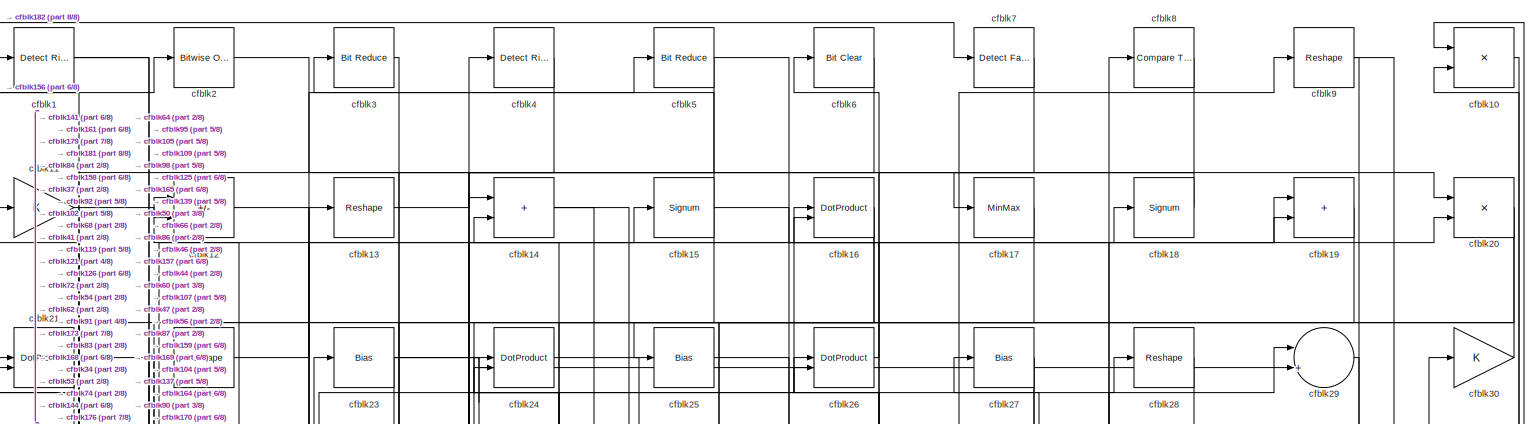
[diagram: root canvas - part 1/8, full width, top band]
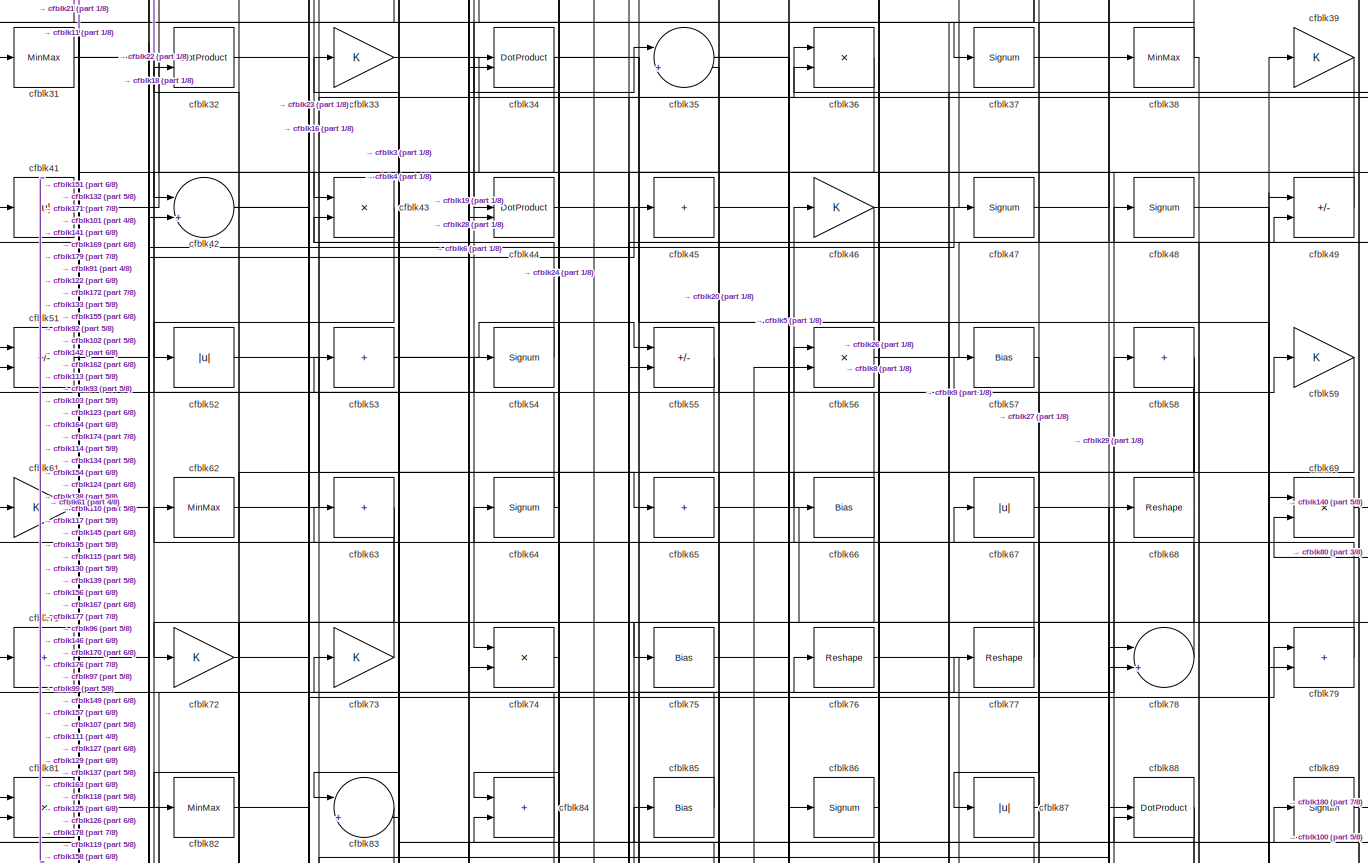
[diagram: root canvas - part 2/8, full width, top band]
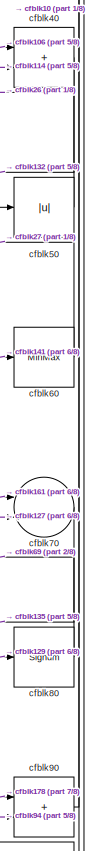
[diagram: root canvas - part 3/8, top right region]
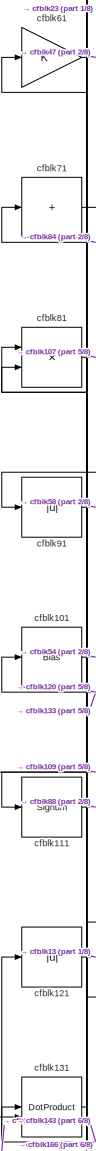
[diagram: root canvas - part 4/8, middle left region]
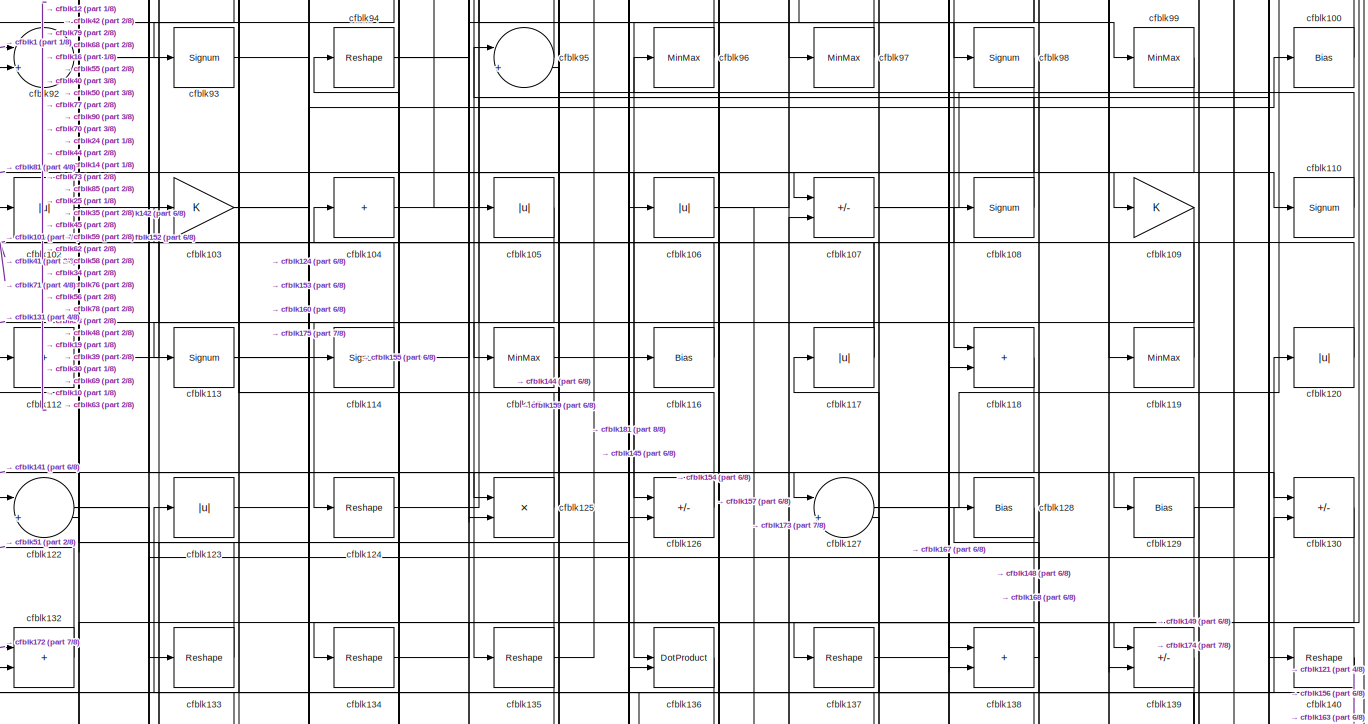
[diagram: root canvas - part 5/8, full width, middle band]
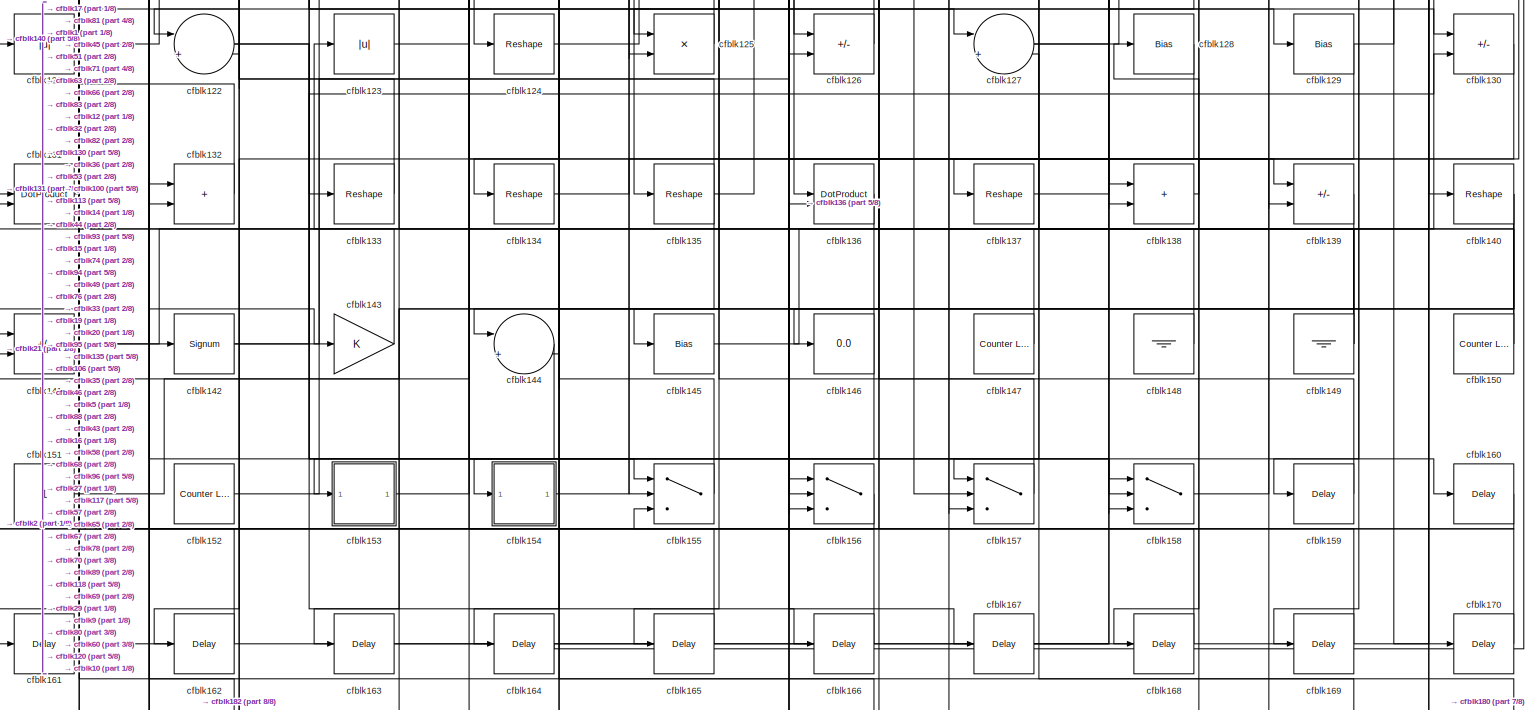
[diagram: root canvas - part 6/8, full width, bottom band]
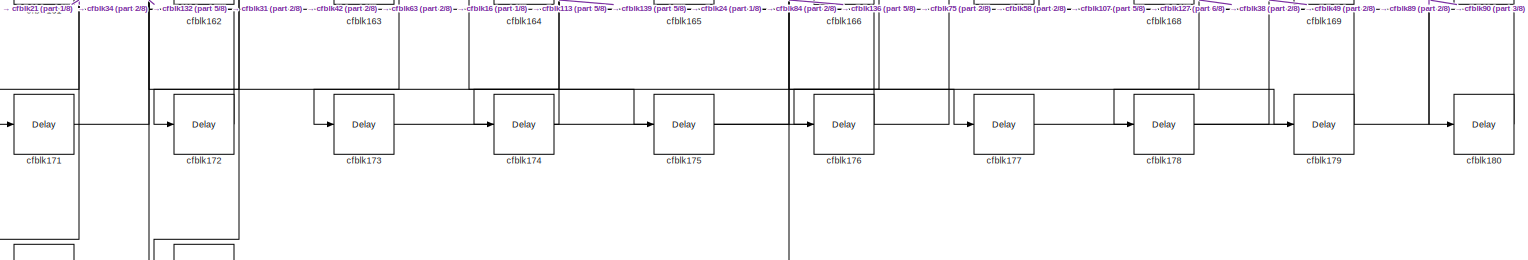
[diagram: root canvas - part 7/8, full width, bottom band]
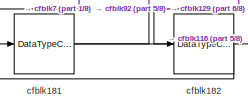
[diagram: root canvas - part 8/8, bottom left region]
MODEL slx_ac8d4f43509a
KIND model
CONFIG AbsTol = auto
CONFIG EnableMultiTasking = off
CONFIG FixedStep = auto
CONFIG MaxStep = auto
CONFIG MinStep = auto
CONFIG RelTol = 1e-3
CONFIG SampleTimeConstraint = Unconstrained
CONFIG SolverName = VariableStepAuto
CONFIG StartTime = 0.0
CONFIG StopTime = 10.0
BLOCK [Reference] cfblk1  REF=hdlsllib/Logic and Bit
Operations/Detect Rise
Positive
  SourceBlock = hdlsllib/Logic and Bit\nOperations/Detect Rise\nPositive
  SourceType = Detect Rise Positive
BLOCK [Product] cfblk10
  Inputs = */
  RndMeth = Zero
  SaturateOnIntegerOverflow = on
BLOCK [Bias] cfblk100
  Bias = 0.0
  SaturateOnIntegerOverflow = off
BLOCK [Bias] cfblk101
  Bias = 0.0
  SaturateOnIntegerOverflow = off
BLOCK [Abs] cfblk102
  SaturateOnIntegerOverflow = off
BLOCK [Gain] cfblk103
BLOCK [Sum] cfblk104
  IconShape = rectangular
  Inputs = +
BLOCK [Abs] cfblk105
  SaturateOnIntegerOverflow = off
BLOCK [Abs] cfblk106
  SaturateOnIntegerOverflow = off
BLOCK [Sum] cfblk107
  IconShape = rectangular
  Inputs = +-
BLOCK [Signum] cfblk108
BLOCK [Gain] cfblk109
BLOCK [Gain] cfblk11
BLOCK [Signum] cfblk110
BLOCK [Signum] cfblk111
BLOCK [Sum] cfblk112
  IconShape = rectangular
  Inputs = +
BLOCK [Signum] cfblk113
BLOCK [Signum] cfblk114
BLOCK [MinMax] cfblk115
BLOCK [Bias] cfblk116
  Bias = 0.0
  SaturateOnIntegerOverflow = off
BLOCK [Abs] cfblk117
  SaturateOnIntegerOverflow = off
BLOCK [Sum] cfblk118
  IconShape = rectangular
BLOCK [MinMax] cfblk119
BLOCK [Sum] cfblk12
  IconShape = rectangular
  Inputs = +-
BLOCK [Abs] cfblk120
  SaturateOnIntegerOverflow = off
BLOCK [Abs] cfblk121
  SaturateOnIntegerOverflow = off
BLOCK [Sum] cfblk122
  Inputs = |++
BLOCK [Abs] cfblk123
  SaturateOnIntegerOverflow = off
BLOCK [Reshape] cfblk124
BLOCK [Product] cfblk125
  Inputs = */
  RndMeth = Zero
  SaturateOnIntegerOverflow = on
BLOCK [Sum] cfblk126
  IconShape = rectangular
  Inputs = +-
BLOCK [Sum] cfblk127
  Inputs = |++
BLOCK [Bias] cfblk128
  Bias = 0.0
  SaturateOnIntegerOverflow = off
BLOCK [Bias] cfblk129
  Bias = 0.0
  SaturateOnIntegerOverflow = off
BLOCK [Reshape] cfblk13
BLOCK [Sum] cfblk130
  IconShape = rectangular
  Inputs = +-
BLOCK [DotProduct] cfblk131
  OutDataTypeStr = Inherit: Inherit via internal rule
BLOCK [Sum] cfblk132
  IconShape = rectangular
BLOCK [Reshape] cfblk133
BLOCK [Reshape] cfblk134
BLOCK [Reshape] cfblk135
BLOCK [DotProduct] cfblk136
  OutDataTypeStr = Inherit: Inherit via internal rule
BLOCK [Reshape] cfblk137
BLOCK [Sum] cfblk138
  IconShape = rectangular
BLOCK [Sum] cfblk139
  IconShape = rectangular
  Inputs = +-
BLOCK [Sum] cfblk14
  IconShape = rectangular
BLOCK [Reshape] cfblk140
BLOCK [Sum] cfblk141
  IconShape = rectangular
  Inputs = +-
BLOCK [Signum] cfblk142
BLOCK [Gain] cfblk143
BLOCK [Sum] cfblk144
  Inputs = |++
BLOCK [Bias] cfblk145
  Bias = 0.0
  SaturateOnIntegerOverflow = off
BLOCK [Display] cfblk146
  Decimation = 1
BLOCK [Reference] cfblk147  REF=hdlsllib/Sources/Counter
Limited
  SourceBlock = hdlsllib/Sources/Counter\nLimited
  SourceType = Counter Limited
BLOCK [Ground] cfblk148
BLOCK [Ground] cfblk149
BLOCK [Signum] cfblk15
BLOCK [Reference] cfblk150  REF=hdlsllib/Sources/Counter
Limited
  SourceBlock = hdlsllib/Sources/Counter\nLimited
  SourceType = Counter Limited
BLOCK [Constant] cfblk151
  SampleTime = -1
BLOCK [Reference] cfblk152  REF=hdlsllib/Sources/Counter
Limited
  SourceBlock = hdlsllib/Sources/Counter\nLimited
  SourceType = Counter Limited
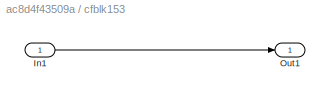
BLOCK [SubSystem] cfblk153
  LibrarySourceBlock = hdlsllib/Ports &\nSubsystems/Subsystem
BLOCK [Inport] cfblk153/In1
BLOCK [Outport] cfblk153/Out1
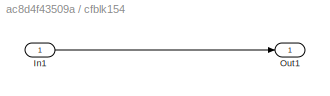
BLOCK [SubSystem] cfblk154
  LibrarySourceBlock = hdlsllib/Ports &\nSubsystems/Subsystem
BLOCK [Inport] cfblk154/In1
BLOCK [Outport] cfblk154/Out1
BLOCK [Switch] cfblk155
  InputSameDT = off
  SaturateOnIntegerOverflow = off
BLOCK [Switch] cfblk156
  InputSameDT = off
  SaturateOnIntegerOverflow = off
BLOCK [Switch] cfblk157
  InputSameDT = off
  SaturateOnIntegerOverflow = off
BLOCK [Switch] cfblk158
  InputSameDT = off
  SaturateOnIntegerOverflow = off
BLOCK [Delay] cfblk159
  InputPortMap = u0
  SampleTime = 1
BLOCK [DotProduct] cfblk16
  OutDataTypeStr = Inherit: Inherit via internal rule
BLOCK [Delay] cfblk160
  InputPortMap = u0
  SampleTime = 1
BLOCK [Delay] cfblk161
  InputPortMap = u0
  SampleTime = 1
BLOCK [Delay] cfblk162
  InputPortMap = u0
  SampleTime = 1
BLOCK [Delay] cfblk163
  InputPortMap = u0
  SampleTime = 1
BLOCK [Delay] cfblk164
  InputPortMap = u0
  SampleTime = 1
BLOCK [Delay] cfblk165
  InputPortMap = u0
  SampleTime = 1
BLOCK [Delay] cfblk166
  InputPortMap = u0
  SampleTime = 1
BLOCK [Delay] cfblk167
  InputPortMap = u0
  SampleTime = 1
BLOCK [Delay] cfblk168
  InputPortMap = u0
  SampleTime = 1
BLOCK [Delay] cfblk169
  InputPortMap = u0
  SampleTime = 1
BLOCK [MinMax] cfblk17
BLOCK [Delay] cfblk170
  InputPortMap = u0
  SampleTime = 1
BLOCK [Delay] cfblk171
  InputPortMap = u0
  SampleTime = 1
BLOCK [Delay] cfblk172
  InputPortMap = u0
  SampleTime = 1
BLOCK [Delay] cfblk173
  InputPortMap = u0
  SampleTime = 1
BLOCK [Delay] cfblk174
  InputPortMap = u0
  SampleTime = 1
BLOCK [Delay] cfblk175
  InputPortMap = u0
  SampleTime = 1
BLOCK [Delay] cfblk176
  InputPortMap = u0
  SampleTime = 1
BLOCK [Delay] cfblk177
  InputPortMap = u0
  SampleTime = 1
BLOCK [Delay] cfblk178
  InputPortMap = u0
  SampleTime = 1
BLOCK [Delay] cfblk179
  InputPortMap = u0
  SampleTime = 1
BLOCK [Signum] cfblk18
BLOCK [Delay] cfblk180
  InputPortMap = u0
  SampleTime = 1
BLOCK [DataTypeConversion] cfblk181
  RndMeth = Floor
  SaturateOnIntegerOverflow = off
BLOCK [DataTypeConversion] cfblk182
  OutDataTypeStr = uint8
  RndMeth = Floor
  SaturateOnIntegerOverflow = off
BLOCK [Sum] cfblk19
  IconShape = rectangular
BLOCK [Reference] cfblk2  REF=simulink/Logic and Bit
Operations/Bitwise
Operator
  LibrarySourceBlock = hdlsllib/Logic and Bit\nOperations/Bitwise\nOperator
  SourceBlock = simulink/Logic and Bit\nOperations/Bitwise\nOperator
  SourceType = Bitwise Operator
BLOCK [Product] cfblk20
  Inputs = */
  RndMeth = Zero
  SaturateOnIntegerOverflow = on
BLOCK [DotProduct] cfblk21
  OutDataTypeStr = Inherit: Inherit via internal rule
BLOCK [Reshape] cfblk22
BLOCK [Bias] cfblk23
  Bias = 0.0
  SaturateOnIntegerOverflow = off
BLOCK [DotProduct] cfblk24
  OutDataTypeStr = Inherit: Inherit via internal rule
BLOCK [Bias] cfblk25
  Bias = 0.0
  SaturateOnIntegerOverflow = off
BLOCK [DotProduct] cfblk26
  OutDataTypeStr = Inherit: Inherit via internal rule
BLOCK [Bias] cfblk27
  Bias = 0.0
  SaturateOnIntegerOverflow = off
BLOCK [Reshape] cfblk28
BLOCK [Sum] cfblk29
  Inputs = |++
BLOCK [Reference] cfblk3  REF=hdlsllib/Logic and Bit
Operations/Bit Reduce
  SourceBlock = hdlsllib/Logic and Bit\nOperations/Bit Reduce
  SourceType = Bit Reduce
BLOCK [Gain] cfblk30
BLOCK [MinMax] cfblk31
BLOCK [DotProduct] cfblk32
  OutDataTypeStr = Inherit: Inherit via internal rule
BLOCK [Gain] cfblk33
BLOCK [DotProduct] cfblk34
  OutDataTypeStr = Inherit: Inherit via internal rule
BLOCK [Sum] cfblk35
  Inputs = |++
BLOCK [Product] cfblk36
  Inputs = */
  RndMeth = Zero
  SaturateOnIntegerOverflow = on
BLOCK [Signum] cfblk37
BLOCK [MinMax] cfblk38
BLOCK [Gain] cfblk39
BLOCK [Reference] cfblk4  REF=hdlsllib/Logic and Bit
Operations/Detect Rise
Nonnegative
  SourceBlock = hdlsllib/Logic and Bit\nOperations/Detect Rise\nNonnegative
  SourceType = Detect Rise Nonnegative
BLOCK [Sum] cfblk40
  IconShape = rectangular
BLOCK [Abs] cfblk41
  SaturateOnIntegerOverflow = off
BLOCK [Sum] cfblk42
  Inputs = |++
BLOCK [Product] cfblk43
  Inputs = */
  RndMeth = Zero
  SaturateOnIntegerOverflow = on
BLOCK [DotProduct] cfblk44
  OutDataTypeStr = Inherit: Inherit via internal rule
BLOCK [Sum] cfblk45
  IconShape = rectangular
  Inputs = +
BLOCK [Gain] cfblk46
BLOCK [Signum] cfblk47
BLOCK [Signum] cfblk48
BLOCK [Sum] cfblk49
  IconShape = rectangular
  Inputs = +-
BLOCK [Reference] cfblk5  REF=hdlsllib/Logic and Bit
Operations/Bit Reduce
  SourceBlock = hdlsllib/Logic and Bit\nOperations/Bit Reduce
  SourceType = Bit Reduce
BLOCK [Abs] cfblk50
  SaturateOnIntegerOverflow = off
BLOCK [Sum] cfblk51
  IconShape = rectangular
  Inputs = +-
BLOCK [Abs] cfblk52
  SaturateOnIntegerOverflow = off
BLOCK [Sum] cfblk53
  IconShape = rectangular
  Inputs = +
BLOCK [Signum] cfblk54
BLOCK [Sum] cfblk55
  IconShape = rectangular
  Inputs = +-
BLOCK [Product] cfblk56
  Inputs = */
  RndMeth = Zero
  SaturateOnIntegerOverflow = on
BLOCK [Bias] cfblk57
  Bias = 0.0
  SaturateOnIntegerOverflow = off
BLOCK [Sum] cfblk58
  IconShape = rectangular
  Inputs = +
BLOCK [Gain] cfblk59
BLOCK [Reference] cfblk6  REF=simulink/Logic and Bit
Operations/Bit Clear
  LibrarySourceBlock = hdlsllib/Logic and Bit\nOperations/Bit Clear
  SourceBlock = simulink/Logic and Bit\nOperations/Bit Clear
  SourceType = Bit Clear
BLOCK [MinMax] cfblk60
BLOCK [Gain] cfblk61
BLOCK [MinMax] cfblk62
BLOCK [Sum] cfblk63
  IconShape = rectangular
  Inputs = +
BLOCK [Signum] cfblk64
BLOCK [Sum] cfblk65
  IconShape = rectangular
  Inputs = +
BLOCK [Bias] cfblk66
  Bias = 0.0
  SaturateOnIntegerOverflow = off
BLOCK [Abs] cfblk67
  SaturateOnIntegerOverflow = off
BLOCK [Reshape] cfblk68
BLOCK [Product] cfblk69
  Inputs = */
  RndMeth = Zero
  SaturateOnIntegerOverflow = on
BLOCK [Reference] cfblk7  REF=hdlsllib/Logic and Bit
Operations/Detect Fall
Nonpositive
  SourceBlock = hdlsllib/Logic and Bit\nOperations/Detect Fall\nNonpositive
  SourceType = Detect Fall Nonpositive
BLOCK [Sum] cfblk70
  Inputs = |++
BLOCK [Sum] cfblk71
  IconShape = rectangular
  Inputs = +
BLOCK [Gain] cfblk72
BLOCK [Gain] cfblk73
BLOCK [Product] cfblk74
  Inputs = */
  RndMeth = Zero
  SaturateOnIntegerOverflow = on
BLOCK [Bias] cfblk75
  Bias = 0.0
  SaturateOnIntegerOverflow = off
BLOCK [Reshape] cfblk76
BLOCK [Reshape] cfblk77
BLOCK [Sum] cfblk78
  Inputs = |++
BLOCK [Sum] cfblk79
  IconShape = rectangular
BLOCK [Reference] cfblk8  REF=hdlsllib/Logic and Bit
Operations/Compare
To Constant
  SourceBlock = hdlsllib/Logic and Bit\nOperations/Compare\nTo Constant
  SourceType = Compare To Constant
BLOCK [Signum] cfblk80
BLOCK [Product] cfblk81
  Inputs = */
  RndMeth = Zero
  SaturateOnIntegerOverflow = on
BLOCK [MinMax] cfblk82
BLOCK [Sum] cfblk83
  Inputs = |++
BLOCK [Sum] cfblk84
  IconShape = rectangular
BLOCK [Bias] cfblk85
  Bias = 0.0
  SaturateOnIntegerOverflow = off
BLOCK [Signum] cfblk86
BLOCK [Abs] cfblk87
  SaturateOnIntegerOverflow = off
BLOCK [DotProduct] cfblk88
  OutDataTypeStr = Inherit: Inherit via internal rule
BLOCK [Signum] cfblk89
BLOCK [Reshape] cfblk9
BLOCK [Sum] cfblk90
  IconShape = rectangular
BLOCK [Abs] cfblk91
  SaturateOnIntegerOverflow = off
BLOCK [Sum] cfblk92
  Inputs = |++
BLOCK [Signum] cfblk93
BLOCK [Reshape] cfblk94
BLOCK [Sum] cfblk95
  Inputs = |++
BLOCK [MinMax] cfblk96
BLOCK [MinMax] cfblk97
BLOCK [Signum] cfblk98
BLOCK [MinMax] cfblk99
LINE cfblk100:1 -> cfblk63:1
LINE cfblk101:1 -> cfblk54:1
LINE cfblk102:1 -> cfblk68:1
NET cfblk103:1 -> cfblk138:2, cfblk35:1
LINE cfblk104:1 -> cfblk30:1
LINE cfblk105:1 -> cfblk134:1
NET cfblk106:1 -> cfblk157:2, cfblk40:1
NET cfblk107:1 -> cfblk19:1, cfblk39:1
LINE cfblk108:1 -> cfblk95:1
LINE cfblk109:1 -> cfblk131:2
LINE cfblk10:1 -> cfblk137:1
LINE cfblk110:1 -> cfblk73:1
LINE cfblk111:1 -> cfblk88:1
LINE cfblk112:1 -> cfblk108:1
NET cfblk113:1 -> cfblk124:1, cfblk175:1
NET cfblk114:1 -> cfblk40:2, cfblk41:1
LINE cfblk115:1 -> cfblk59:1
LINE cfblk116:1 -> cfblk103:1
NET cfblk117:1 -> cfblk104:1, cfblk85:1
LINE cfblk118:1 -> cfblk141:1
LINE cfblk119:1 -> cfblk12:1
LINE cfblk11:1 -> cfblk12:2
LINE cfblk120:1 -> cfblk71:1
LINE cfblk121:1 -> cfblk13:1
NET cfblk122:1 -> cfblk158:2, cfblk166:1
LINE cfblk123:1 -> cfblk88:2
LINE cfblk124:1 -> cfblk76:1
LINE cfblk125:1 -> cfblk33:1
LINE cfblk126:1 -> cfblk43:2
NET cfblk127:1 -> cfblk70:2, cfblk89:1
LINE cfblk128:1 -> cfblk155:2
NET cfblk129:1 -> cfblk182:1, cfblk80:1
LINE cfblk12:1 -> cfblk126:2
LINE cfblk130:1 -> cfblk168:1
LINE cfblk131:1 -> cfblk61:1
LINE cfblk132:1 -> cfblk51:2
LINE cfblk133:1 -> cfblk101:1
LINE cfblk134:1 -> cfblk77:1
NET cfblk135:1 -> cfblk112:1, cfblk144:1, cfblk56:2
LINE cfblk136:1 -> cfblk154:1
LINE cfblk137:1 -> cfblk78:1
LINE cfblk138:1 -> cfblk48:1
LINE cfblk139:1 -> cfblk174:1
LINE cfblk13:1 -> cfblk4:1
NET cfblk140:1 -> cfblk121:1, cfblk156:3, cfblk163:1
NET cfblk141:1 -> cfblk45:1, cfblk60:1
NET cfblk142:1 -> cfblk130:2, cfblk36:1
LINE cfblk143:1 -> cfblk81:1
LINE cfblk144:1 -> cfblk153:1
LINE cfblk145:1 -> cfblk120:1
LINE cfblk147:1 -> cfblk123:1
LINE cfblk148:1 -> cfblk96:1
NET cfblk149:1 -> cfblk117:1, cfblk53:1, cfblk57:1
NET cfblk14:1 -> cfblk105:1, cfblk109:1
NET cfblk150:1 -> cfblk128:1, cfblk131:1
LINE cfblk151:1 -> cfblk44:2
LINE cfblk152:1 -> cfblk106:1
LINE cfblk153/In1:1 -> cfblk153/Out1:1
LINE cfblk153:1 -> cfblk100:1
LINE cfblk154/In1:1 -> cfblk154/Out1:1
LINE cfblk154:1 -> cfblk49:2
LINE cfblk155:1 -> cfblk94:1
LINE cfblk156:1 -> cfblk2:1
LINE cfblk157:1 -> cfblk16:2
LINE cfblk158:1 -> cfblk69:1
LINE cfblk159:1 -> cfblk95:2
NET cfblk15:1 -> cfblk144:2, cfblk20:2, cfblk3:1
LINE cfblk160:1 -> cfblk155:3
LINE cfblk161:1 -> cfblk70:1
LINE cfblk162:1 -> cfblk51:1
LINE cfblk163:1 -> cfblk78:2
LINE cfblk164:1 -> cfblk10:1
LINE cfblk165:1 -> cfblk1:1
LINE cfblk166:1 -> cfblk81:2
LINE cfblk167:1 -> cfblk118:2
LINE cfblk168:1 -> cfblk14:1
LINE cfblk169:1 -> cfblk32:1
NET cfblk16:1 -> cfblk102:1, cfblk173:1
LINE cfblk170:1 -> cfblk36:2
LINE cfblk171:1 -> cfblk42:2
LINE cfblk172:1 -> cfblk132:1
LINE cfblk173:1 -> cfblk107:2
LINE cfblk174:1 -> cfblk84:2
LINE cfblk175:1 -> cfblk136:2
LINE cfblk176:1 -> cfblk24:2
LINE cfblk177:1 -> cfblk49:1
LINE cfblk178:1 -> cfblk90:1
LINE cfblk179:1 -> cfblk21:2
LINE cfblk17:1 -> cfblk161:1
LINE cfblk180:1 -> cfblk127:2
NET cfblk181:1 -> cfblk116:1, cfblk92:2
LINE cfblk182:1 -> cfblk7:1
LINE cfblk18:1 -> cfblk17:1
LINE cfblk19:1 -> cfblk125:1
NET cfblk1:1 -> cfblk158:3, cfblk92:1
NET cfblk20:1 -> cfblk165:1, cfblk74:1
NET cfblk21:1 -> cfblk141:2, cfblk37:1
LINE cfblk22:1 -> cfblk15:1
NET cfblk23:1 -> cfblk29:2, cfblk86:1, cfblk91:1
LINE cfblk24:1 -> cfblk98:1
LINE cfblk25:1 -> cfblk139:2
LINE cfblk26:1 -> cfblk6:1
NET cfblk27:1 -> cfblk157:3, cfblk44:1
LINE cfblk28:1 -> cfblk87:1
LINE cfblk29:1 -> cfblk159:1
LINE cfblk2:1 -> cfblk20:1
LINE cfblk30:1 -> cfblk25:1
NET cfblk31:1 -> cfblk179:1, cfblk43:1
LINE cfblk32:1 -> cfblk127:1
LINE cfblk33:1 -> cfblk118:1
NET cfblk34:1 -> cfblk119:1, cfblk171:1, cfblk97:1
NET cfblk35:1 -> cfblk130:1, cfblk167:1, cfblk79:2
LINE cfblk36:1 -> cfblk84:1
LINE cfblk37:1 -> cfblk38:1
NET cfblk38:1 -> cfblk178:1, cfblk31:1
LINE cfblk39:1 -> cfblk55:2
LINE cfblk3:1 -> cfblk83:1
LINE cfblk40:1 -> cfblk132:2
LINE cfblk41:1 -> cfblk18:1
NET cfblk42:1 -> cfblk133:1, cfblk75:1
LINE cfblk43:1 -> cfblk52:1
LINE cfblk44:1 -> cfblk138:1
LINE cfblk45:1 -> cfblk139:1
NET cfblk46:1 -> cfblk156:2, cfblk9:1
LINE cfblk47:1 -> cfblk29:1
LINE cfblk48:1 -> cfblk110:1
LINE cfblk49:1 -> cfblk42:1
LINE cfblk4:1 -> cfblk83:2
LINE cfblk50:1 -> cfblk26:1
LINE cfblk51:1 -> cfblk142:1
LINE cfblk52:1 -> cfblk65:1
NET cfblk53:1 -> cfblk19:2, cfblk28:1, cfblk55:1
LINE cfblk54:1 -> cfblk23:1
LINE cfblk55:1 -> cfblk113:1
LINE cfblk56:1 -> cfblk8:1
LINE cfblk57:1 -> cfblk157:1
NET cfblk58:1 -> cfblk145:1, cfblk176:1, cfblk93:1
LINE cfblk59:1 -> cfblk82:1
NET cfblk5:1 -> cfblk156:1, cfblk34:2
LINE cfblk60:1 -> cfblk27:1
LINE cfblk61:1 -> cfblk47:1
LINE cfblk62:1 -> cfblk16:1
NET cfblk63:1 -> cfblk122:2, cfblk172:1
NET cfblk64:1 -> cfblk21:1, cfblk24:1
LINE cfblk65:1 -> cfblk158:1
NET cfblk66:1 -> cfblk122:1, cfblk35:2
LINE cfblk67:1 -> cfblk129:1
NET cfblk68:1 -> cfblk146:1, cfblk22:1
LINE cfblk69:1 -> cfblk140:1
LINE cfblk6:1 -> cfblk74:2
LINE cfblk70:1 -> cfblk135:1
LINE cfblk71:1 -> cfblk143:1
LINE cfblk72:1 -> cfblk5:1
LINE cfblk73:1 -> cfblk72:1
LINE cfblk74:1 -> cfblk164:1
LINE cfblk75:1 -> cfblk177:1
LINE cfblk76:1 -> cfblk99:1
LINE cfblk77:1 -> cfblk64:1
LINE cfblk78:1 -> cfblk32:2
LINE cfblk79:1 -> cfblk46:1
LINE cfblk7:1 -> cfblk181:1
LINE cfblk80:1 -> cfblk69:2
LINE cfblk81:1 -> cfblk107:1
LINE cfblk82:1 -> cfblk155:1
LINE cfblk83:1 -> cfblk162:1
NET cfblk84:1 -> cfblk111:1, cfblk11:1
LINE cfblk85:1 -> cfblk34:1
LINE cfblk86:1 -> cfblk26:2
LINE cfblk87:1 -> cfblk67:1
NET cfblk88:1 -> cfblk125:2, cfblk126:1
LINE cfblk89:1 -> cfblk180:1
LINE cfblk8:1 -> cfblk66:1
LINE cfblk90:1 -> cfblk10:2
LINE cfblk91:1 -> cfblk58:1
NET cfblk92:1 -> cfblk115:1, cfblk79:1
LINE cfblk93:1 -> cfblk160:1
NET cfblk94:1 -> cfblk50:1, cfblk90:2
LINE cfblk95:1 -> cfblk14:2
LINE cfblk96:1 -> cfblk62:1
LINE cfblk97:1 -> cfblk56:1
LINE cfblk98:1 -> cfblk136:1
LINE cfblk99:1 -> cfblk114:1
NET cfblk9:1 -> cfblk169:1, cfblk170:1
note: NET lines group one-source signal fan-out (src -> all destinations, sorted); 1:1 wires keep LINE
